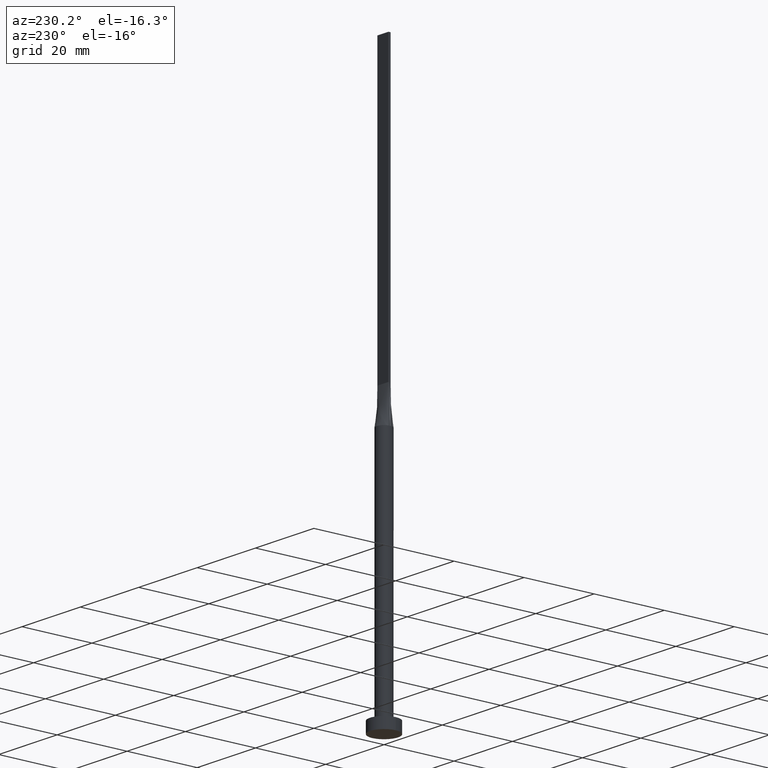
[diagram: clean part render]
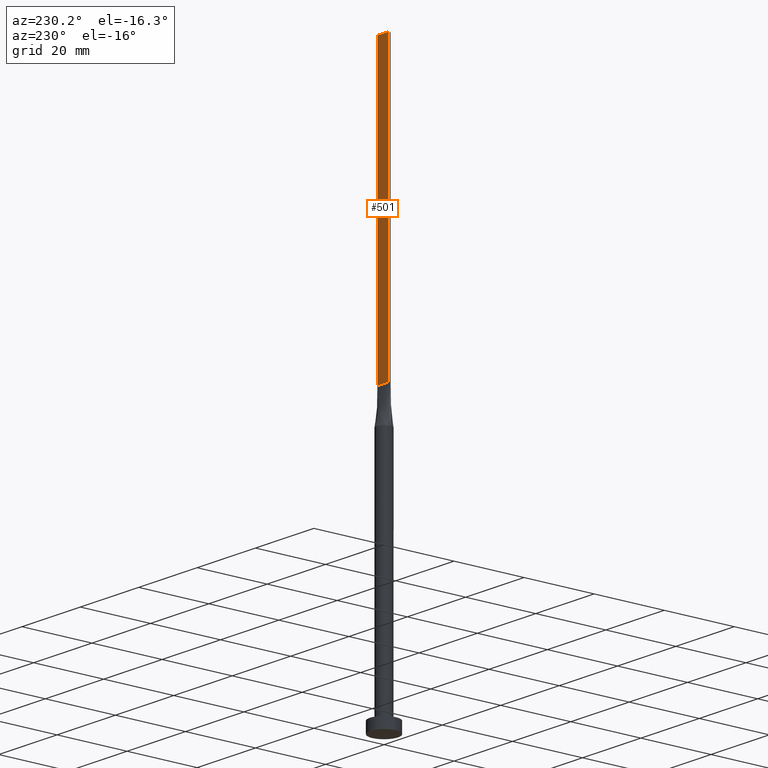
[diagram: same view with one face highlighted and labeled with its STEP entity id]
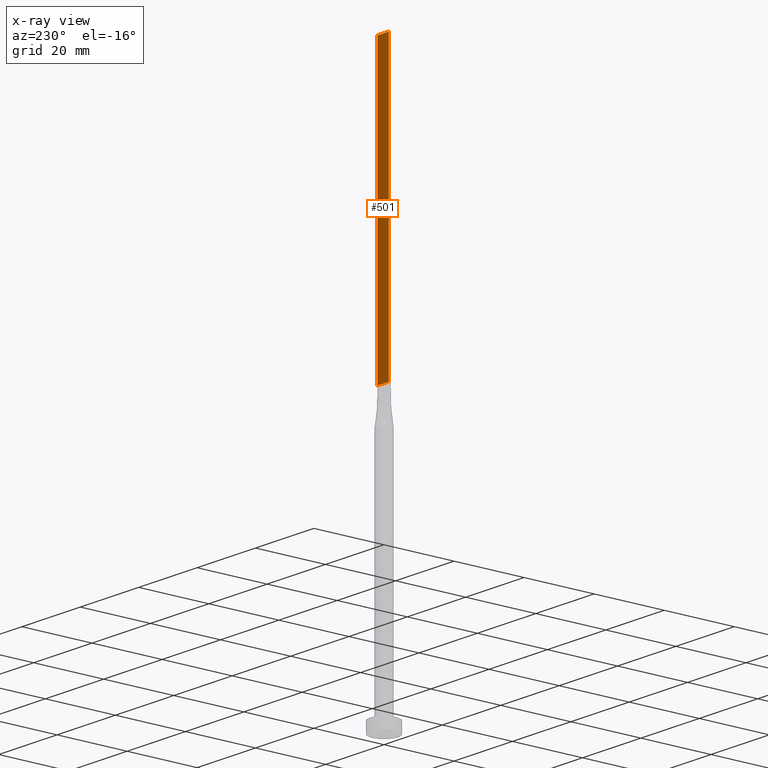
[diagram: x-ray of the same camera — body ghosted, the highlighted face saturated]
A machine part, auxiliary view. The second image highlights one B-rep face of the part: STEP entity #501.
The next image is the same camera in x-ray: the body ghosted, the highlighted face saturated — about 0% of this face is hidden behind the body in this view.
In plain terms, the highlighted planar face has unit normal (0, -1, 0).
Its self-contained STEP definition (entity closure, byte-faithful):
#32 = LINE ( 'NONE', #72, #205 ) ;
#38 = CARTESIAN_POINT ( 'NONE',  ( 1.899999999999999689, 0.3000000000000002109, 160.0000000000000000 ) ) ;
#72 = CARTESIAN_POINT ( 'NONE',  ( 1.899999999999999689, 0.3000000000000002109, 160.0000000000000000 ) ) ;
#126 = VECTOR ( 'NONE', #285, 1000.000000000000000 ) ;
#135 = VECTOR ( 'NONE', #388, 1000.000000000000000 ) ;
#163 = ORIENTED_EDGE ( 'NONE', *, *, #457, .T. ) ;
#165 = CARTESIAN_POINT ( 'NONE',  ( -1.899999999999999689, 0.3000000000000002109, 160.0000000000000000 ) ) ;
#170 = PLANE ( 'NONE',  #467 ) ;
#182 = CARTESIAN_POINT ( 'NONE',  ( -1.899999999999999689, 0.3000000000000002109, 80.00000000000000000 ) ) ;
#190 = EDGE_LOOP ( 'NONE', ( #163, #284, #393, #483 ) ) ;
#205 = VECTOR ( 'NONE', #423, 1000.000000000000000 ) ;
#209 = CARTESIAN_POINT ( 'NONE',  ( -1.899999999999999689, 0.3000000000000002109, 80.00000000000000000 ) ) ;
#212 = DIRECTION ( 'NONE',  ( 0.000000000000000000, -1.000000000000000000, 0.000000000000000000 ) ) ;
#242 = EDGE_CURVE ( 'NONE', #289, #475, #575, .T. ) ;
#284 = ORIENTED_EDGE ( 'NONE', *, *, #387, .F. ) ;
#285 = DIRECTION ( 'NONE',  ( -1.000000000000000000, 0.000000000000000000, 0.000000000000000000 ) ) ;
#289 = VERTEX_POINT ( 'NONE', #484 ) ;
#331 = LINE ( 'NONE', #474, #557 ) ;
#351 = VERTEX_POINT ( 'NONE', #182 ) ;
#387 = EDGE_CURVE ( 'NONE', #475, #351, #331, .T. ) ;
#388 = DIRECTION ( 'NONE',  ( -1.000000000000000000, -0.000000000000000000, -0.000000000000000000 ) ) ;
#393 = ORIENTED_EDGE ( 'NONE', *, *, #242, .F. ) ;
#398 = EDGE_CURVE ( 'NONE', #289, #459, #32, .T. ) ;
#423 = DIRECTION ( 'NONE',  ( -0.000000000000000000, -0.000000000000000000, -1.000000000000000000 ) ) ;
#435 = LINE ( 'NONE', #209, #135 ) ;
#438 = CARTESIAN_POINT ( 'NONE',  ( 1.899999999999999689, 0.3000000000000002109, 160.0000000000000000 ) ) ;
#457 = EDGE_CURVE ( 'NONE', #459, #351, #435, .T. ) ;
#459 = VERTEX_POINT ( 'NONE', #574 ) ;
#466 = DIRECTION ( 'NONE',  ( -0.000000000000000000, -0.000000000000000000, -1.000000000000000000 ) ) ;
#467 = AXIS2_PLACEMENT_3D ( 'NONE', #438, #212, #536 ) ;
#474 = CARTESIAN_POINT ( 'NONE',  ( -1.899999999999999689, 0.3000000000000002109, 160.0000000000000000 ) ) ;
#475 = VERTEX_POINT ( 'NONE', #165 ) ;
#483 = ORIENTED_EDGE ( 'NONE', *, *, #398, .T. ) ;
#484 = CARTESIAN_POINT ( 'NONE',  ( 1.899999999999999689, 0.3000000000000002109, 160.0000000000000000 ) ) ;
#501 = ADVANCED_FACE ( 'NONE', ( #577 ), #170, .F. ) ;
#536 = DIRECTION ( 'NONE',  ( 0.000000000000000000, -0.000000000000000000, -1.000000000000000000 ) ) ;
#557 = VECTOR ( 'NONE', #466, 1000.000000000000000 ) ;
#574 = CARTESIAN_POINT ( 'NONE',  ( 1.899999999999999689, 0.3000000000000002109, 80.00000000000000000 ) ) ;
#575 = LINE ( 'NONE', #38, #126 ) ;
#577 = FACE_OUTER_BOUND ( 'NONE', #190, .T. ) ;